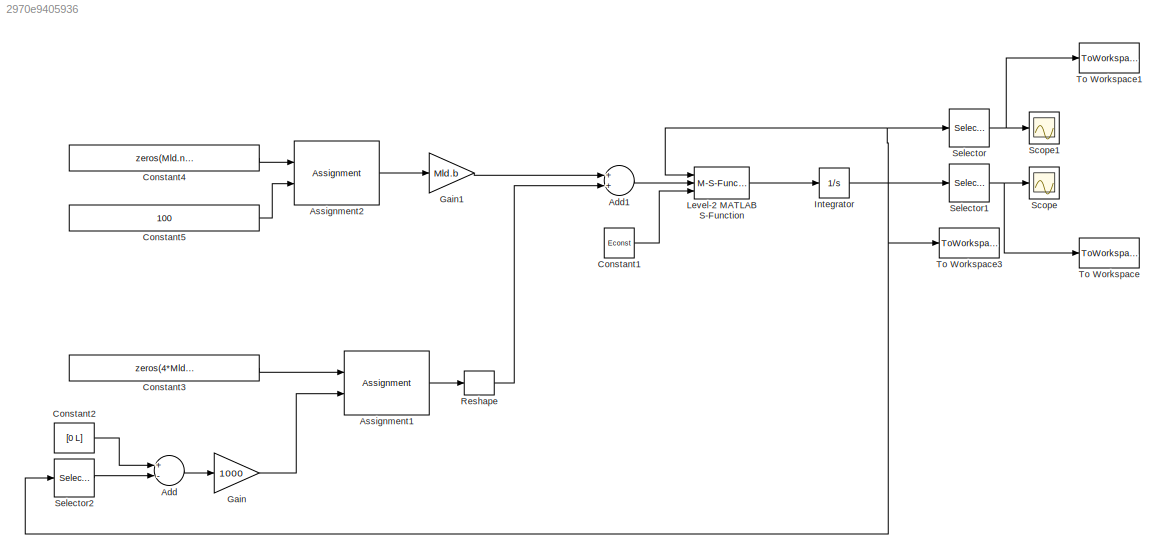
MODEL slx_2970e9405936
KIND model
CONFIG AbsTol = auto
CONFIG EnableMultiTasking = off
CONFIG FixedStep = 0.006
CONFIG MaxStep = auto
CONFIG MinStep = auto
CONFIG RelTol = 1e-3
CONFIG SampleTimeConstraint = Unconstrained
CONFIG Solver = ode8
CONFIG SolverName = ode8
CONFIG StartTime = 0.0
CONFIG StopTime = 10.0
BLOCK [Sum] Add
  InputSameDT = off
  Inputs = +-
  OutDataTypeStr = Inherit: Inherit via internal rule
  Ports = [2, 1]
  SaturateOnIntegerOverflow = off
BLOCK [Sum] Add1
  InputSameDT = off
  OutDataTypeStr = Inherit: Inherit via internal rule
  Ports = [2, 1]
  SaturateOnIntegerOverflow = off
BLOCK [Assignment] Assignment1
  DiagnosticForDimensions = Warning
  IndexOptions = Index vector (dialog)
  Indices = [1 Mld.nControlPoints]
  OutputSizes = 1
  Ports = [2, 1]
BLOCK [Assignment] Assignment2
  DiagnosticForDimensions = Warning
  IndexOptions = Index vector (dialog),Index vector (dialog)
  Indices = [35],3
  NumberOfDimensions = 2
  OutputSizes = 1,1
  Ports = [2, 1]
BLOCK [Constant] Constant1
  Value = Econst
BLOCK [Constant] Constant2
  Value = [0 L]
BLOCK [Constant] Constant3
  Value = zeros(4*Mld.nControlPoints,1)
BLOCK [Constant] Constant4
  Value = zeros(Mld.nSplineSamples,4)
BLOCK [Constant] Constant5
  Value = 100
BLOCK [Gain] Gain
  Gain = 1000
  OutDataTypeStr = Inherit: Inherit via internal rule
  ParamDataTypeStr = Inherit: Inherit via internal rule
  SaturateOnIntegerOverflow = off
BLOCK [Gain] Gain1
  Gain = Mld.b
  Multiplication = Matrix(K*u)
  OutDataTypeStr = Inherit: Inherit via internal rule
  ParamDataTypeStr = Inherit: Inherit via internal rule
  SaturateOnIntegerOverflow = off
BLOCK [Integrator] Integrator
  InitialCondition = Yinit(:)
  Ports = [1, 1]
BLOCK [M-S-Function] Level-2 MATLAB S-Function
  FunctionName = ODE_sim
  Parameters = Mld
  Ports = [3, 1]
BLOCK [Reshape] Reshape
  OutputDimensionality = Customize
  OutputDimensions = [Mld.nControlPoints,4]
  Ports = [1, 1]
BLOCK [Scope] Scope
  Floating = off
  NumInputPorts = 1
  Ports = [1]
  ScopeSpecificationString = Simulink.scopes.TimeScopeBlockCfg('CurrentConfiguration', extmgr.ConfigurationSet(extmgr.Configuration('Core','General UI',true),extmgr.Configuration('Core','Source UI',true),extmgr.Configuration('Sources','WiredSimulink',true),extmgr.Configuration('Visuals','Time Domain',true,'SerializedDisplays',{struct('MinYLimReal','-0.30603','MaxYLimReal','0.1753','YLabelReal','','MinYLimMag','0.00000','MaxYL...<+1373ch>
BLOCK [Scope] Scope1
  Floating = off
  NumInputPorts = 1
  Ports = [1]
  ScopeSpecificationString = Simulink.scopes.TimeScopeBlockCfg('CurrentConfiguration', extmgr.ConfigurationSet(extmgr.Configuration('Core','General UI',true),extmgr.Configuration('Core','Source UI',true),extmgr.Configuration('Sources','WiredSimulink',true,'DataLoggingVariableName','ScopeData1'),extmgr.Configuration('Visuals','Time Domain',true,'SerializedDisplays',{struct('MinYLimReal','-0.25','MaxYLimReal','2.25','YLabelReal...<+1395ch>
BLOCK [Selector] Selector
  IndexOptions = Index vector (dialog)
  Indices = [1:Mld.nControlPoints]
  InputPortWidth = 8*Mld.nControlPoints
  OutputSizes = 1
  Ports = [1, 1]
BLOCK [Selector] Selector1
  IndexOptions = Index vector (dialog)
  Indices = [Mld.nControlPoints*2+1:Mld.nControlPoints*3]
  InputPortWidth = 8*Mld.nControlPoints
  OutputSizes = 1
  Ports = [1, 1]
BLOCK [Selector] Selector2
  IndexOptions = Index vector (dialog)
  Indices = [1 Mld.nControlPoints]
  InputPortWidth = 8*Mld.nControlPoints
  OutputSizes = 1
  Ports = [1, 1]
BLOCK [ToWorkspace] To Workspace
  FixptAsFi = on
  MaxDataPoints = inf
  Ports = [1]
  SampleTime = -1
  VariableName = z_axis
BLOCK [ToWorkspace] To Workspace1
  FixptAsFi = on
  MaxDataPoints = inf
  Ports = [1]
  SampleTime = -1
  VariableName = x_axis
BLOCK [ToWorkspace] To Workspace3
  FixptAsFi = on
  MaxDataPoints = inf
  Ports = [1]
  SampleTime = -1
  Save2DSignal = 2-D array (concatenate along first dimension)
  VariableName = location
LINE Add1:1 -> Level-2 MATLAB S-Function:2
LINE Add:1 -> Gain:1
LINE Assignment1:1 -> Reshape:1
LINE Assignment2:1 -> Gain1:1
LINE Constant1:1 -> Level-2 MATLAB S-Function:3
LINE Constant2:1 -> Add:1
LINE Constant3:1 -> Assignment1:1
LINE Constant4:1 -> Assignment2:1
LINE Constant5:1 -> Assignment2:2
LINE Gain1:1 -> Add1:1
LINE Gain:1 -> Assignment1:2
NET Integrator:1 -> Level-2 MATLAB S-Function:1, Selector1:1, Selector2:1, Selector:1, To Workspace3:1
LINE Level-2 MATLAB S-Function:1 -> Integrator:1
LINE Reshape:1 -> Add1:2
NET Selector1:1 -> Scope:1, To Workspace:1
LINE Selector2:1 -> Add:2
NET Selector:1 -> Scope1:1, To Workspace1:1
note: NET lines group one-source signal fan-out (src -> all destinations, sorted); 1:1 wires keep LINE
